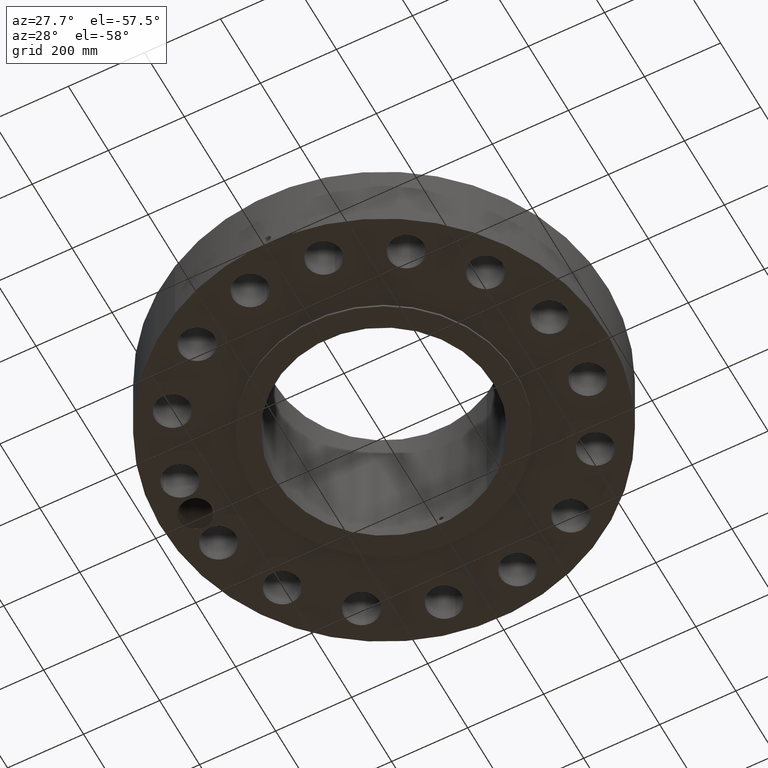
[diagram: clean part render]
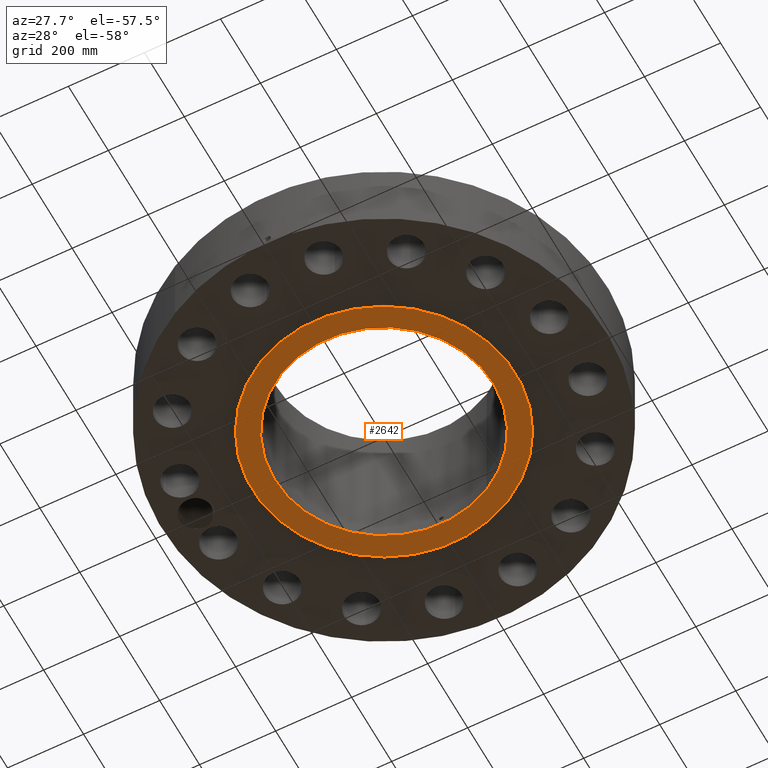
[diagram: same view with one face highlighted and labeled with its STEP entity id]
A machine part, auxiliary view. The second image highlights one B-rep face of the part: STEP entity #2642.
In plain terms, the highlighted planar face has unit normal (0, 0, -1).
Its self-contained STEP definition (entity closure, byte-faithful):
#1428=AXIS2_PLACEMENT_3D('Circle Axis2P3D',#1426,#1427,$) ;
#1454=AXIS2_PLACEMENT_3D('Circle Axis2P3D',#1452,#1453,$) ;
#2618=AXIS2_PLACEMENT_3D('Plane Axis2P3D',#2615,#2616,#2617) ;
#2626=AXIS2_PLACEMENT_3D('Circle Axis2P3D',#2624,#2625,$) ;
#2635=AXIS2_PLACEMENT_3D('Circle Axis2P3D',#2633,#2634,$) ;
#1426=CARTESIAN_POINT('Axis2P3D Location',(0.,0.,1.1189649382E-015)) ;
#1430=CARTESIAN_POINT('Vertex',(6.53217296351,11.9570624058,1.1189649382E-015)) ;
#1432=CARTESIAN_POINT('Vertex',(-6.53217296351,-11.9570624058,1.1189649382E-015)) ;
#1452=CARTESIAN_POINT('Axis2P3D Location',(0.,0.,1.1189649382E-015)) ;
#2615=CARTESIAN_POINT('Axis2P3D Location',(0.,11.312,0.)) ;
#2624=CARTESIAN_POINT('Axis2P3D Location',(0.,0.,0.)) ;
#2628=CARTESIAN_POINT('Vertex',(5.42326169271,9.92721394014,-7.38516859215E-014)) ;
#2630=CARTESIAN_POINT('Vertex',(-5.42326169271,-9.92721394014,-7.38516859215E-014)) ;
#2633=CARTESIAN_POINT('Axis2P3D Location',(0.,0.,0.)) ;
#1427=DIRECTION('Axis2P3D Direction',(0.,0.,-0.0393700787402)) ;
#1453=DIRECTION('Axis2P3D Direction',(0.,0.,-0.0393700787402)) ;
#2616=DIRECTION('Axis2P3D Direction',(0.,0.,-0.0393700787402)) ;
#2617=DIRECTION('Axis2P3D XDirection',(0.0393700787402,0.,0.)) ;
#2625=DIRECTION('Axis2P3D Direction',(0.,0.,-0.0393700787402)) ;
#2634=DIRECTION('Axis2P3D Direction',(0.,0.,-0.0393700787402)) ;
#2621=ORIENTED_EDGE('',*,*,#1456,.T.) ;
#2622=ORIENTED_EDGE('',*,*,#1434,.T.) ;
#2639=ORIENTED_EDGE('',*,*,#2632,.F.) ;
#2640=ORIENTED_EDGE('',*,*,#2637,.F.) ;
#2641=FACE_BOUND('',#2638,.T.) ;
#2642=ADVANCED_FACE('PartBody',(#2623,#2641),#2619,.T.) ;
#1429=CIRCLE('generated circle',#1428,13.6250000001) ;
#1455=CIRCLE('generated circle',#1454,13.6250000001) ;
#2627=CIRCLE('generated circle',#2626,11.312) ;
#2636=CIRCLE('generated circle',#2635,11.312) ;
#1434=EDGE_CURVE('',#1431,#1433,#1429,.T.) ;
#1456=EDGE_CURVE('',#1433,#1431,#1455,.T.) ;
#2632=EDGE_CURVE('',#2629,#2631,#2627,.T.) ;
#2637=EDGE_CURVE('',#2631,#2629,#2636,.T.) ;
#2620=EDGE_LOOP('',(#2621,#2622)) ;
#2638=EDGE_LOOP('',(#2639,#2640)) ;
#2623=FACE_OUTER_BOUND('',#2620,.T.) ;
#2619=PLANE('',#2618) ;
#1431=VERTEX_POINT('',#1430) ;
#1433=VERTEX_POINT('',#1432) ;
#2629=VERTEX_POINT('',#2628) ;
#2631=VERTEX_POINT('',#2630) ;